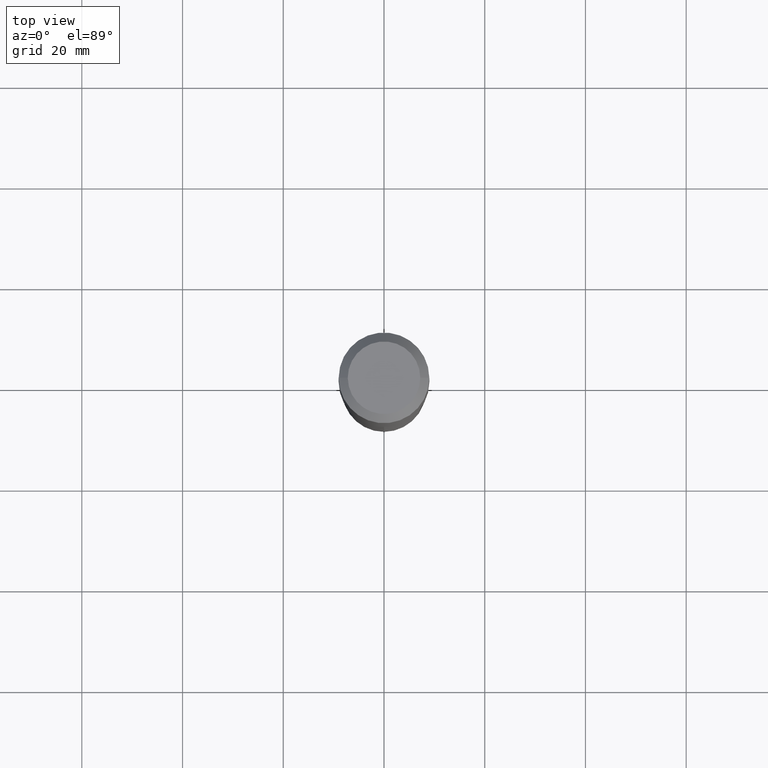
[diagram: clean part render]
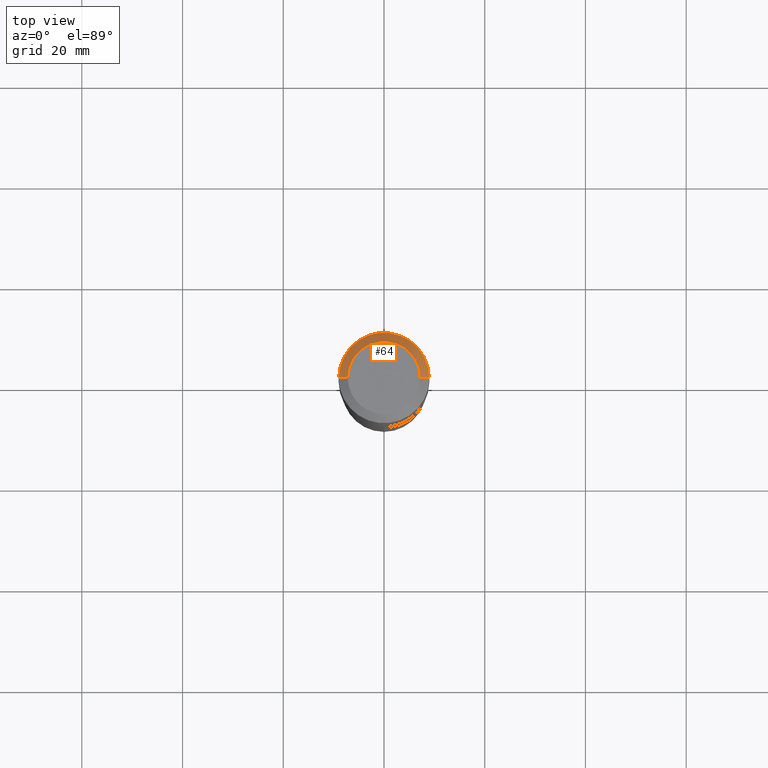
[diagram: same view with one face highlighted and labeled with its STEP entity id]
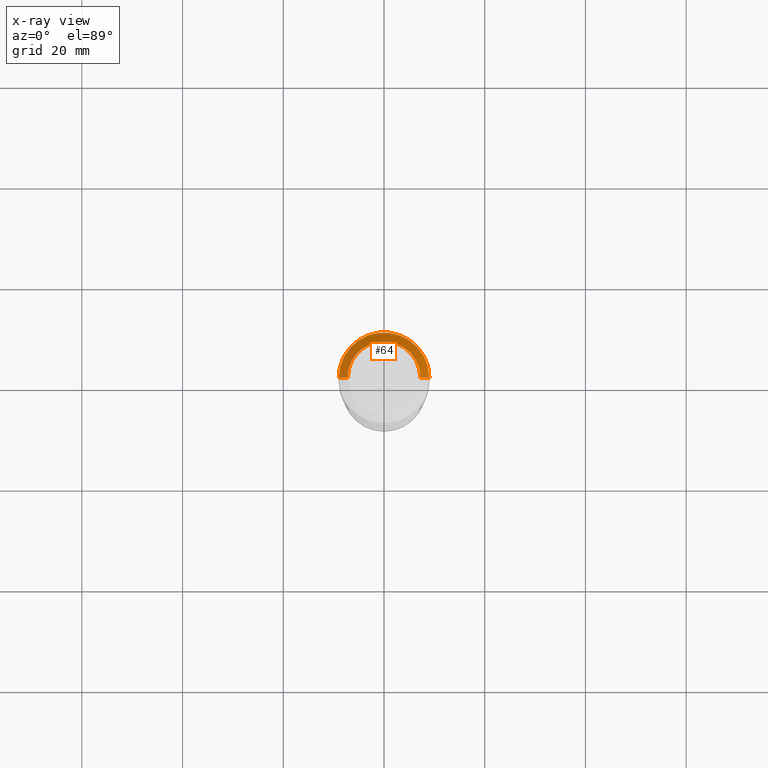
[diagram: x-ray of the same camera — body ghosted, the highlighted face saturated]
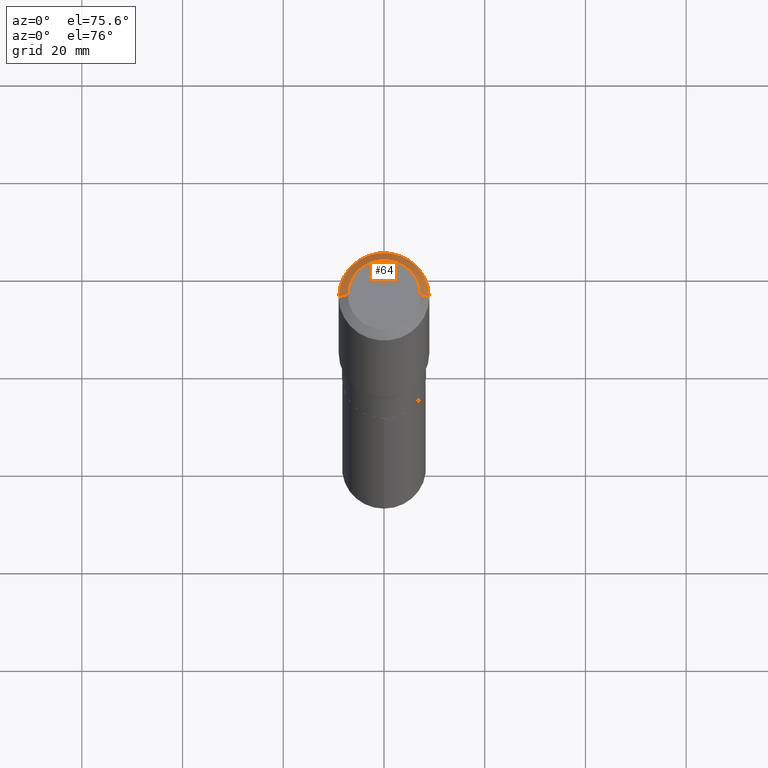
[diagram: same view with one face highlighted and labeled with its STEP entity id]
A machine part, top view. The second image highlights one B-rep face of the part: STEP entity #64.
The next image is the same camera in x-ray: the body ghosted, the highlighted face saturated — about 0% of this face is hidden behind the body in this view.
A second angle (auxiliary view) of the same face is appended — the face is thin or edge-on in the first view.
In plain terms, the highlighted conical surface has half-angle 45 deg.
Its self-contained STEP definition (entity closure, byte-faithful):
#11 = EDGE_CURVE ( 'NONE', #171, #158, #235, .T. ) ;
#20 = LINE ( 'NONE', #326, #463 ) ;
#25 = CARTESIAN_POINT ( 'NONE',  ( -9.439721640706191963E-47, 1.347742071746725396E-32, 3.860086710912455110E-18 ) ) ;
#28 = DIRECTION ( 'NONE',  ( 0.7071067811865453523, -7.319954787623248157E-15, -0.7071067811865496822 ) ) ;
#29 = ORIENTED_EDGE ( 'NONE', *, *, #377, .T. ) ;
#38 = AXIS2_PLACEMENT_3D ( 'NONE', #396, #443, #213 ) ;
#42 = VERTEX_POINT ( 'NONE', #215 ) ;
#56 = DIRECTION ( 'NONE',  ( -2.445468806185136597E-29, 3.491481338843145583E-15, 1.000000000000000000 ) ) ;
#59 = VERTEX_POINT ( 'NONE', #331 ) ;
#64 = ADVANCED_FACE ( 'NONE', ( #480 ), #155, .T. ) ;
#101 = ORIENTED_EDGE ( 'NONE', *, *, #11, .T. ) ;
#134 = LINE ( 'NONE', #393, #375 ) ;
#141 = CARTESIAN_POINT ( 'NONE',  ( 1.733103742943417062E-30, -2.474412824838152853E-16, -0.07087000000000043265 ) ) ;
#155 = CONICAL_SURFACE ( 'NONE', #218, 0.3543499999999999983, 0.7853981633974452814 ) ;
#158 = VERTEX_POINT ( 'NONE', #488 ) ;
#171 = VERTEX_POINT ( 'NONE', #351 ) ;
#183 = DIRECTION ( 'NONE',  ( 2.445468806185136597E-29, -3.491481338843145583E-15, -1.000000000000000000 ) ) ;
#200 = EDGE_LOOP ( 'NONE', ( #460, #29, #101, #368 ) ) ;
#213 = DIRECTION ( 'NONE',  ( 1.000000000000000000, -6.982962677686266711E-15, 0.000000000000000000 ) ) ;
#215 = CARTESIAN_POINT ( 'NONE',  ( 0.2834800000000000098, -2.311636360201216027E-15, 3.860086710927458874E-18 ) ) ;
#218 = AXIS2_PLACEMENT_3D ( 'NONE', #141, #183, #327 ) ;
#232 = CIRCLE ( 'NONE', #457, 0.2834800000000000098 ) ;
#235 = CIRCLE ( 'NONE', #38, 0.3543499999999999983 ) ;
#246 = DIRECTION ( 'NONE',  ( -0.7071067811865453523, 2.468850131082234184E-15, -0.7071067811865496822 ) ) ;
#326 = CARTESIAN_POINT ( 'NONE',  ( -0.3543499999999999983, 2.226971542354313655E-15, -0.07087000000000043265 ) ) ;
#327 = DIRECTION ( 'NONE',  ( -1.000000000000000000, 6.982962677686266711E-15, 0.000000000000000000 ) ) ;
#331 = CARTESIAN_POINT ( 'NONE',  ( -0.2834800000000000098, 2.103250901112408108E-15, 3.860086710898179346E-18 ) ) ;
#351 = CARTESIAN_POINT ( 'NONE',  ( 0.3543499999999999983, -2.721854107321943733E-15, -0.07087000000000043265 ) ) ;
#368 = ORIENTED_EDGE ( 'NONE', *, *, #411, .F. ) ;
#375 = VECTOR ( 'NONE', #28, 39.37007874015748143 ) ;
#377 = EDGE_CURVE ( 'NONE', #42, #171, #134, .T. ) ;
#393 = CARTESIAN_POINT ( 'NONE',  ( 0.3543499999999999983, -2.678458747994157430E-15, -0.07087000000000043265 ) ) ;
#396 = CARTESIAN_POINT ( 'NONE',  ( 1.733103742943417062E-30, -2.474412824838152853E-16, -0.07087000000000043265 ) ) ;
#411 = EDGE_CURVE ( 'NONE', #59, #158, #20, .T. ) ;
#425 = EDGE_CURVE ( 'NONE', #42, #59, #232, .T. ) ;
#436 = DIRECTION ( 'NONE',  ( 1.000000000000000000, -6.982962677686266711E-15, 4.876249319814053138E-29 ) ) ;
#443 = DIRECTION ( 'NONE',  ( -2.445468806185136597E-29, 3.491481338843145583E-15, 1.000000000000000000 ) ) ;
#457 = AXIS2_PLACEMENT_3D ( 'NONE', #25, #56, #436 ) ;
#460 = ORIENTED_EDGE ( 'NONE', *, *, #425, .F. ) ;
#463 = VECTOR ( 'NONE', #246, 39.37007874015748143 ) ;
#480 = FACE_OUTER_BOUND ( 'NONE', #200, .T. ) ;
#488 = CARTESIAN_POINT ( 'NONE',  ( -0.3543499999999999983, -8.256692607236688475E-16, -0.07087000000000043265 ) ) ;